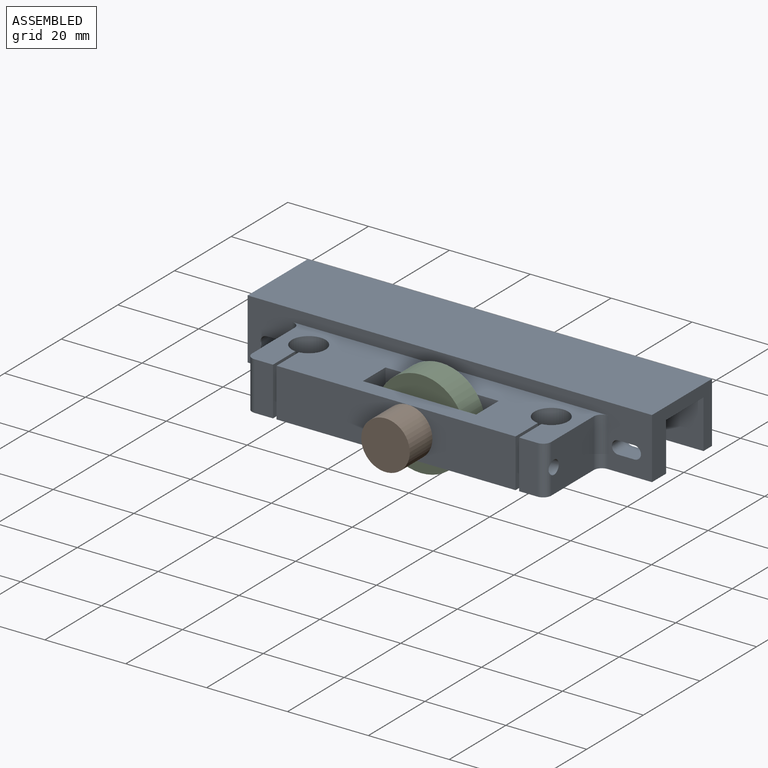
[diagram: assembled view]
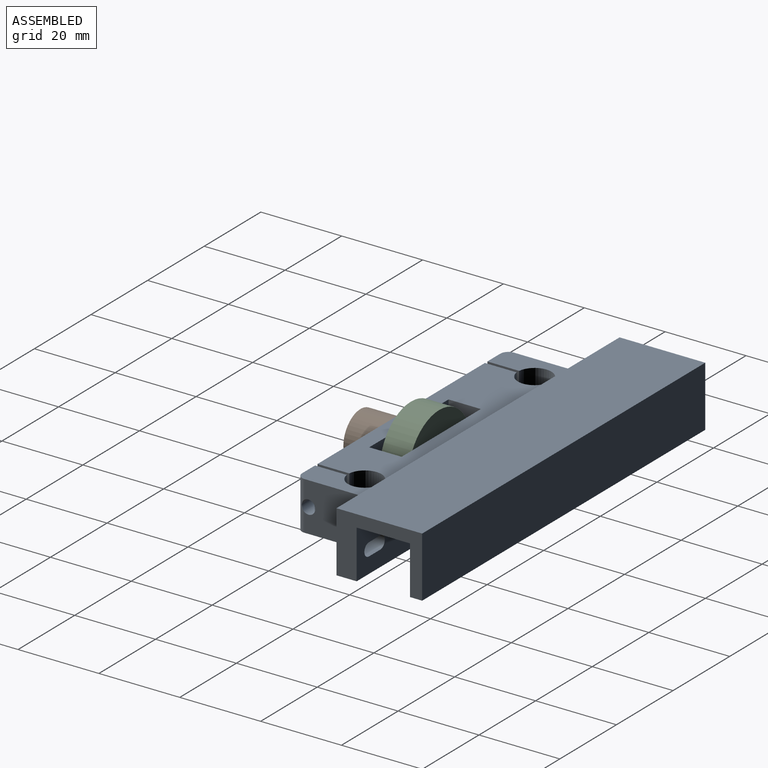
[diagram: assembled view, second angle]
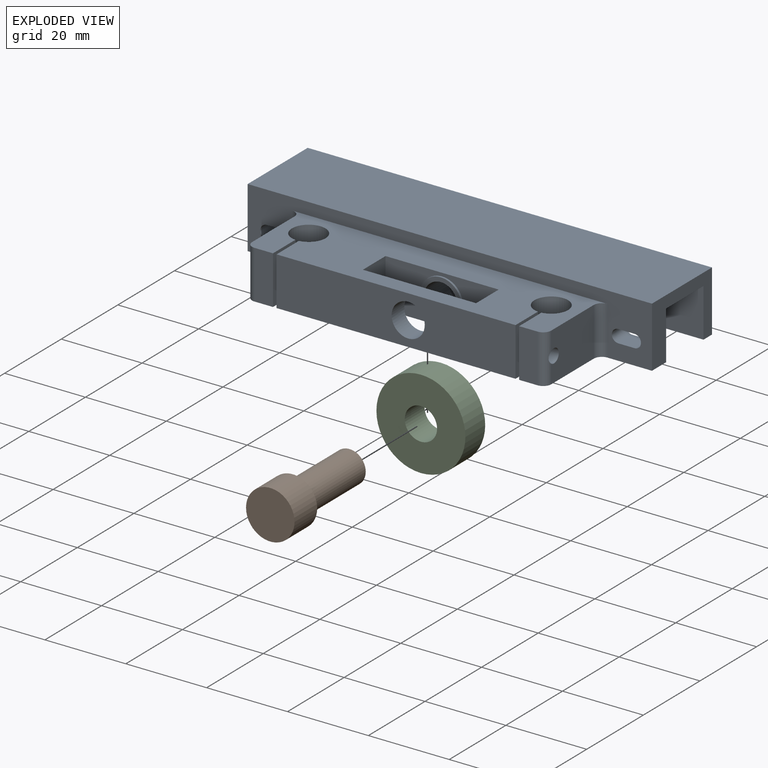
[diagram: exploded view]
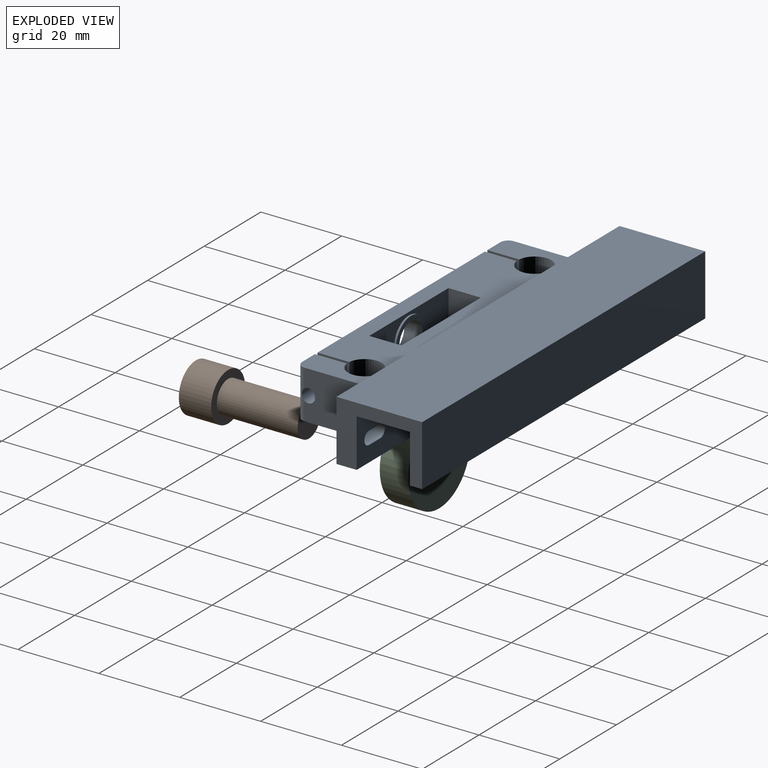
[diagram: exploded view, second angle]
ASSEMBLY  parts=3 mates=2
PART A: 51 faces, bbox 100x40.2x15 mm
  f0: plane 78x19mm, normal (0,0,1), area 1060mm2, adj f3,f4,f5,f7,f8,f9,f11,f12
  f1: plane 100x24mm, normal (0,0,-1), area 1560mm2, adj f2,f3,f4,f5,f6,f7,f8,f9
  f2: plane 100x12mm, normal (0,1,0), area 1158.3mm2, adj f1,f6,f10,f17,f18,f19,f20,f21
  f3: plane 100x15mm, normal (0,-1,0), area 522.3mm2, adj f0,f1,f6,f10,f17,f18,f19,f20
  f4: plane 12x4.56mm, normal (0,-1,0), area 54.7mm2, adj f0,f1,f15,f45
  f5: plane 59.12x12mm, normal (0,-1,0), area 656.7mm2, adj f0,f1,f13,f16,f25
  f6: plane 21.2x15mm, normal (-1,0,0), area 159.6mm2, adj f1,f2,f3,f46,f47,f48,f49,f50
  f7: plane 15x12mm, normal (-1,0,0), area 172.5mm2, adj f0,f1,f42,f43,f44
  f8: plane 12x4.56mm, normal (0,-1,0), area 54.7mm2, adj f0,f1,f12,f44
  f9: plane 15x12mm, normal (1,0,0), area 172.4mm2, adj f0,f1,f38,f39,f45
  f10: plane 21.2x15mm, normal (1,0,0), area 159.6mm2, adj f1,f2,f3,f46,f47,f48,f49,f50
  f11: cylinder r=4.15mm len=12mm, axis (0,0,1), area 302.4mm2, adj f0,f1,f12,f13
  f12: plane 12x7.87mm, normal (1,0,0), area 85.4mm2, adj f0,f1,f8,f11,f42
  f13: plane 12x7.87mm, normal (-1,0,0), area 88.3mm2, adj f0,f1,f5,f11,f41
  f14: cylinder r=4.15mm len=12mm, axis (0,0,1), area 302.4mm2, adj f0,f1,f15,f16
  f15: plane 12x7.87mm, normal (-1,0,0), area 85.4mm2, adj f0,f1,f4,f14,f38
  f16: plane 12x7.87mm, normal (1,0,0), area 88.3mm2, adj f0,f1,f5,f14,f37
  f17: cylinder r=1.6mm len=5mm, axis (0,1,0), area 25.1mm2, adj f2,f3,f18,f20
  f18: plane 5x4mm, normal (0,0,1), area 20mm2, adj f2,f3,f17,f19
  f19: cylinder r=1.6mm len=5mm, axis (0,1,0), area 25.1mm2, adj f2,f3,f18,f20
  f20: plane 5x4mm, normal (0,0,-1), area 20mm2, adj f2,f3,f17,f19
  f21: plane 5x4mm, normal (0,0,-1), area 20mm2, adj f2,f3,f22,f24
  f22: cylinder r=1.6mm len=5mm, axis (0,1,0), area 25.1mm2, adj f2,f3,f21,f23
  f23: plane 5x4mm, normal (0,0,1), area 20mm2, adj f2,f3,f22,f24
  f24: cylinder r=1.6mm len=5mm, axis (0,1,0), area 25.1mm2, adj f2,f3,f21,f23
  f25: cylinder r=4.1mm len=8.2mm, axis (0,-1,0), area 115.9mm2, adj f5,f35
  f26: plane 12x8mm, normal (1,0,0), area 96mm2, adj f0,f1,f28,f29
  f27: plane 12x8mm, normal (-1,0,0), area 96mm2, adj f0,f1,f28,f29
  f28: plane 28x12mm, normal (0,-1,0), area 251.2mm2, adj f0,f1,f26,f27,f30
  f29: plane 28x12mm, normal (0,1,0), area 249.3mm2, adj f0,f1,f26,f27,f34
  f30: cylinder r=5.2mm len=10.39mm, axis (0,1,0), area 16.3mm2, adj f28,f31
  f31: plane 10.39x10.39mm, normal (0,-1,0), area 32mm2, adj f30,f33
  f32: plane 8.2x8.2mm, normal (0,-1,0), area 52.8mm2, adj f33
  f33: cylinder r=4.1mm len=8.5mm, axis (0,-1,0), area 219mm2, adj f31,f32
  f34: cylinder r=5.25mm len=10.51mm, axis (0,-1,0), area 16.5mm2, adj f29,f35
  f35: plane 10.51x10.51mm, normal (0,1,0), area 33.9mm2, adj f25,f34
  f36: plane 2.8x2.8mm, normal (1,0,0), area 6.2mm2, adj f37
  f37: cylinder r=1.4mm len=10.56mm, axis (1,0,0), area 92.9mm2, adj f16,f36
  f38: cylinder r=1.7mm len=6.56mm, axis (1,0,0), area 69.8mm2, adj f9,f15,f45
  f39: cylinder r=2mm len=12mm, axis (0,0,1), area 37.7mm2, adj f0,f1,f3,f9
  f40: plane 2.8x2.8mm, normal (-1,0,0), area 6.2mm2, adj f41
  f41: cylinder r=1.4mm len=10.56mm, axis (-1,0,0), area 92.9mm2, adj f13,f40
  f42: cylinder r=1.7mm len=6.56mm, axis (-1,0,0), area 69.8mm2, adj f7,f12,f44
  f43: cylinder r=2mm len=12mm, axis (0,0,1), area 37.7mm2, adj f0,f1,f3,f7
  f44: cylinder r=2mm len=12mm, axis (0,0,-1), area 36.1mm2, adj f0,f1,f7,f8,f42
  f45: cylinder r=2mm len=12mm, axis (0,0,-1), area 36.2mm2, adj f0,f1,f4,f9,f38
  f46: plane 100x13.2mm, normal (0,0,-1), area 1320mm2, adj f2,f6,f10,f50
  f47: plane 100x21.2mm, normal (0,0,1), area 2120mm2, adj f3,f6,f10,f48
  f48: plane 100x15mm, normal (0,1,0), area 1500mm2, adj f6,f10,f47,f49
  f49: plane 100x3mm, normal (0,0,-1), area 300mm2, adj f6,f10,f48,f50
  f50: plane 100x12mm, normal (0,-1,0), area 1200mm2, adj f6,f10,f46,f49
PART B: 5 faces, bbox 12x12x28 mm
  f0: cylinder r=4mm len=20mm, axis (0,0,-1), area 502.7mm2, adj f1,f4
  f1: plane 8x8mm, normal (0,0,-1), area 50.3mm2, adj f0
  f2: cylinder r=6mm len=12mm, axis (0,0,-1), area 301.6mm2, adj f3,f4
  f3: plane 12x12mm, normal (0,0,1), area 113.1mm2, adj f2
  f4: plane 12x12mm, normal (0,0,-1), area 62.8mm2, adj f0,f2
PART C: 4 faces, bbox 22x22x7 mm
  f0: cylinder r=4mm len=8mm, axis (0,0,-1), area 175.9mm2, adj f2,f3
  f1: cylinder r=11mm len=22mm, axis (0,0,-1), area 483.8mm2, adj f2,f3
  f2: plane 22x22mm, normal (0,0,1), area 329.9mm2, adj f0,f1
  f3: plane 22x22mm, normal (0,0,-1), area 329.9mm2, adj f0,f1
PLACE A t=(11.99,13.39,21.25)mm
PLACE B rot(axis=(1,0,0),90deg) t=(18.64,21.7,27.25)mm
PLACE C rot(axis=(-1,0,0),90deg) t=(18.64,6.2,27.25)mm
MATE fastened B.f0 <-> A.f25  axis (0,1,0) through (18.64,1.7,27.25)mm
MATE fastened C.f0 <-> A.f25  axis (0,1,0) through (18.64,6.2,27.25)mm
